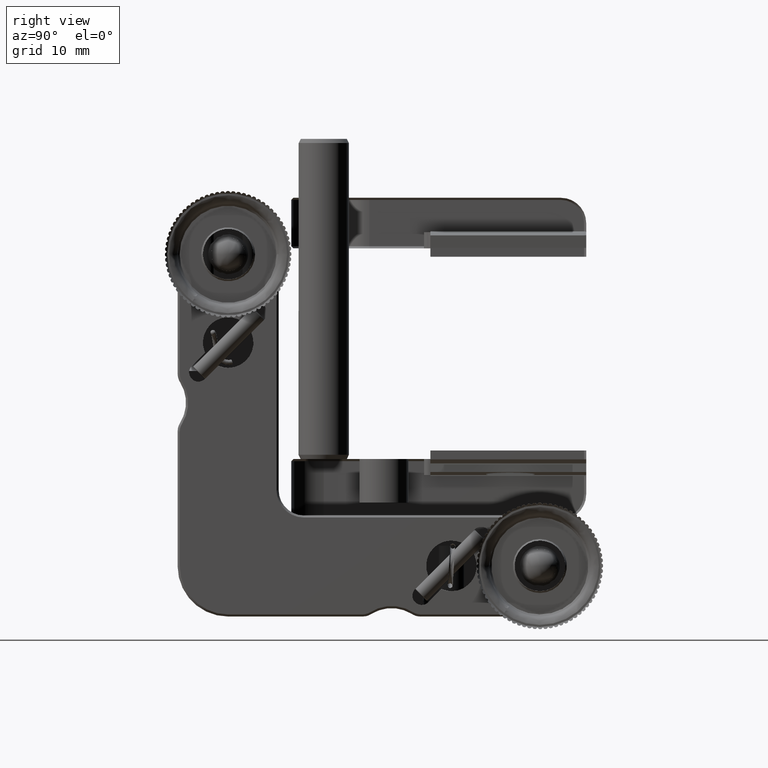
[diagram: clean part render]
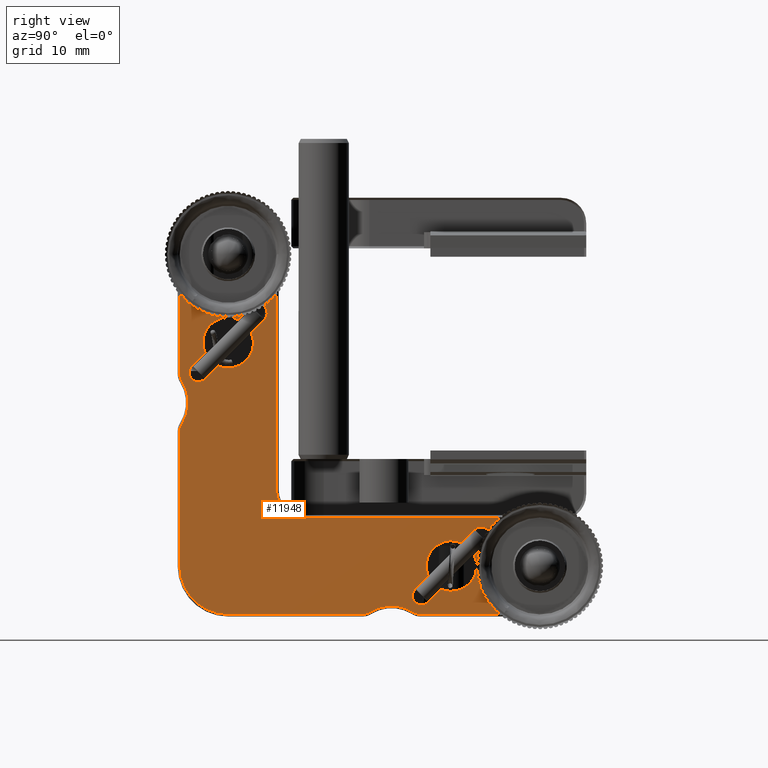
[diagram: same view with one face highlighted and labeled with its STEP entity id]
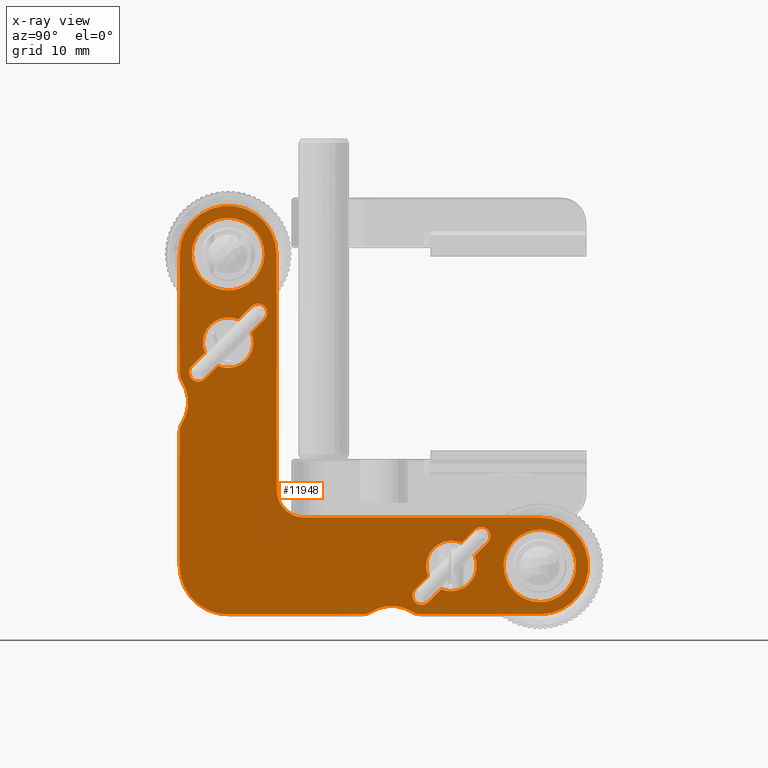
[diagram: x-ray of the same camera — body ghosted, the highlighted face saturated]
A machine part, right view. The second image highlights one B-rep face of the part: STEP entity #11948.
The next image is the same camera in x-ray: the body ghosted, the highlighted face saturated — about 0% of this face is hidden behind the body in this view.
In plain terms, the highlighted planar face has unit normal (1, -0, 0).
Its self-contained STEP definition (entity closure, byte-faithful):
#50 = CARTESIAN_POINT ( 'NONE',  ( -4.241743268239636322, -28.18608873492985012, 64.66912141911889478 ) ) ;
#172 = CARTESIAN_POINT ( 'NONE',  ( -4.241743268239636322, -7.687668858248105863, 29.30424202370614140 ) ) ;
#211 = CARTESIAN_POINT ( 'NONE',  ( -4.241743268239636322, -27.79664158331641133, 65.20904453012119006 ) ) ;
#230 = CARTESIAN_POINT ( 'NONE',  ( -4.241743268307176074, -36.91704519414748376, 47.36854112739627709 ) ) ;
#251 = CARTESIAN_POINT ( 'NONE',  ( -4.241743268239637210, 2.968090458738607662, 33.92906772998760090 ) ) ;
#365 = CARTESIAN_POINT ( 'NONE',  ( -4.241743268239637210, -27.75776076557543348, 69.73153419009217657 ) ) ;
#408 = CARTESIAN_POINT ( 'NONE',  ( -4.241743268239636322, 1.411490060111419975, 31.63352353895105296 ) ) ;
#420 = DIRECTION ( 'NONE',  ( 1.000000000000000000, -0.000000000000000000, -0.000000000000000000 ) ) ;
#421 = EDGE_CURVE ( 'NONE', #2104, #912, #19788, .T. ) ;
#522 = CARTESIAN_POINT ( 'NONE',  ( -4.241743268239636322, -28.66508601733288586, 64.20615514256219569 ) ) ;
#563 = CARTESIAN_POINT ( 'NONE',  ( -4.241743268239637210, 1.263791435125589890, 29.95355049306596840 ) ) ;
#615 = CARTESIAN_POINT ( 'NONE',  ( -4.241743268291429558, -22.43627596334387775, 39.50000000000000000 ) ) ;
#639 = VERTEX_POINT ( 'NONE', #20497 ) ;
#654 = CARTESIAN_POINT ( 'NONE',  ( -4.241743268239638098, 8.857568894083584610, 33.27118994602555802 ) ) ;
#690 = CARTESIAN_POINT ( 'NONE',  ( -4.241743268239636322, -28.83508814509134055, 70.93686597109810066 ) ) ;
#761 = DIRECTION ( 'NONE',  ( 0.000000000000000000, 0.000000000000000000, -1.000000000000000000 ) ) ;
#819 = CARTESIAN_POINT ( 'NONE',  ( -4.241743268239638098, 7.478970680304893648, 34.35475077789762821 ) ) ;
#830 = DIRECTION ( 'NONE',  ( -1.000000000000000000, -0.000000000000000000, -0.000000000000000000 ) ) ;
#839 = VERTEX_POINT ( 'NONE', #21770 ) ;
#856 = DIRECTION ( 'NONE',  ( 0.000000000000000000, 0.000000000000000000, -1.000000000000000000 ) ) ;
#858 = EDGE_CURVE ( 'NONE', #7142, #1146, #6519, .T. ) ;
#860 = VERTEX_POINT ( 'NONE', #31063 ) ;
#884 = CARTESIAN_POINT ( 'NONE',  ( -4.241743268239638098, 2.418324588451209678, 27.56425487554369980 ) ) ;
#887 = CARTESIAN_POINT ( 'NONE',  ( -4.241743268239636322, 1.708973258758272884, 32.41524664364856534 ) ) ;
#912 = VERTEX_POINT ( 'NONE', #12364 ) ;
#932 = CARTESIAN_POINT ( 'NONE',  ( -4.241743268239636322, -34.03190954125602730, 70.92906772999329235 ) ) ;
#1010 = EDGE_CURVE ( 'NONE', #6736, #14386, #28380, .T. ) ;
#1016 = CARTESIAN_POINT ( 'NONE',  ( -4.241743268239636322, -32.63203393963775056, 54.24860710509576478 ) ) ;
#1100 = CARTESIAN_POINT ( 'NONE',  ( -4.241743268239636322, -34.03746378159530650, 64.06313402889986719 ) ) ;
#1146 = VERTEX_POINT ( 'NONE', #10477 ) ;
#1165 = VERTEX_POINT ( 'NONE', #15350 ) ;
#1212 = CARTESIAN_POINT ( 'NONE',  ( -4.241743268239635434, 4.430088735178792980, 26.34781025370086383 ) ) ;
#1262 = CARTESIAN_POINT ( 'NONE',  ( -4.241743268239636322, -35.11479116111333809, 65.26846580990891766 ) ) ;
#1297 = LINE ( 'NONE', #8899, #28209 ) ;
#1417 = CARTESIAN_POINT ( 'NONE',  ( -4.241743268239636322, -34.95255393356799800, 65.02384870965046559 ) ) ;
#1445 = CARTESIAN_POINT ( 'NONE',  ( -4.241743268239636322, -37.18627596334385998, 49.00000000000001421 ) ) ;
#1574 = CARTESIAN_POINT ( 'NONE',  ( -4.241743268239636322, -35.11331557686494165, 69.73039862767036823 ) ) ;
#1625 = VERTEX_POINT ( 'NONE', #27331 ) ;
#1956 = AXIS2_PLACEMENT_3D ( 'NONE', #17949, #3355, #761 ) ;
#2062 = CARTESIAN_POINT ( 'NONE',  ( -4.241743268239636322, 9.549238352945716102, 32.11456086833818091 ) ) ;
#2104 = VERTEX_POINT ( 'NONE', #12332 ) ;
#2185 = FACE_BOUND ( 'NONE', #12035, .T. ) ;
#2194 = EDGE_CURVE ( 'NONE', #860, #29113, #19326, .T. ) ;
#2324 = DIRECTION ( 'NONE',  ( 1.000000000000000000, -0.000000000000000000, -0.000000000000000000 ) ) ;
#2369 = ORIENTED_EDGE ( 'NONE', *, *, #6613, .T. ) ;
#2373 = VECTOR ( 'NONE', #6983, 1000.000000000000000 ) ;
#2386 = B_SPLINE_CURVE_WITH_KNOTS ( 'NONE', 3,
 ( #12708, #17883, #17398, #20318, #13021, #15292, #2653, #3122, #27308, #19841, #15605, #22910, #7504, #690, #5074, #2809, #10414, #22598, #22437, #10584, #365, #7987, #10098, #25190, #2489, #30246, #30087, #15130, #27470, #2958, #7822, #12857, #5232, #10257, #12385, #22750, #22279, #27795, #5719, #211, #29924, #50, #7660, #522, #20153, #30402, #20481, #8145, #17552, #5549, #24869, #25350, #18039, #27957, #9934, #29771 ),
 .UNSPECIFIED., .F., .F.,
 ( 4, 1, 1, 1, 2, 2, 1, 2, 2, 2, 1, 2, 2, 1, 1, 2, 2, 2, 1, 1, 1, 2, 2, 1, 2, 2, 2, 1, 2, 2, 1, 1, 2, 2, 4 ),
 ( 0.000000000000000000, 0.06250000000000960343, 0.09375000000001409983, 0.1093750000000159595, 0.1171875000000168893, 0.1250000000000178191, 0.1562500000000183742, 0.1718750000000176248, 0.1875000000000168754, 0.2500000000000144884, 0.2812500000000119904, 0.2968750000000119349, 0.3125000000000118239, 0.3437500000000094924, 0.3593750000000083822, 0.3671875000000064393, 0.3750000000000045519, 0.5000000000000074385, 0.5625000000000105471, 0.5937500000000122125, 0.6093750000000127676, 0.6171875000000116573, 0.6250000000000105471, 0.6562500000000144329, 0.6718750000000164313, 0.6875000000000183187, 0.7500000000000204281, 0.7812500000000214273, 0.7968750000000207612, 0.8125000000000199840, 0.8437500000000179856, 0.8593750000000158762, 0.8671875000000145439, 0.8750000000000132117, 1.000000000000000000 ),
 .UNSPECIFIED. ) ;
#2489 = CARTESIAN_POINT ( 'NONE',  ( -4.241743268239636322, -27.46537467465373439, 69.15022359429254095 ) ) ;
#2512 = FACE_BOUND ( 'NONE', #5745, .T. ) ;
#2570 = CARTESIAN_POINT ( 'NONE',  ( -4.241743268272342604, -22.43627596334387775, 36.25000000000887468 ) ) ;
#2653 = CARTESIAN_POINT ( 'NONE',  ( -4.241743268239637210, -29.91711612671550569, 71.52285577431088370 ) ) ;
#2698 = CARTESIAN_POINT ( 'NONE',  ( -4.241743268239635434, 3.149988222370785351, 34.05936344847756203 ) ) ;
#2809 = CARTESIAN_POINT ( 'NONE',  ( -4.241743268239635434, -28.29087651513944834, 70.43574512445731273 ) ) ;
#2844 = DIRECTION ( 'NONE',  ( 0.000000000000000000, 0.000000000000000000, -1.000000000000000000 ) ) ;
#2852 = CARTESIAN_POINT ( 'NONE',  ( -4.241743268239637210, 5.016747480701998718, 34.80000000000002558 ) ) ;
#2958 = CARTESIAN_POINT ( 'NONE',  ( -4.241743268239637210, -27.17395577786049188, 66.82400577503672423 ) ) ;
#2998 = CARTESIAN_POINT ( 'NONE',  ( -4.241743268239635434, 1.263690337421411014, 30.77322475346705843 ) ) ;
#3092 = CARTESIAN_POINT ( 'NONE',  ( -4.241743268239635434, 9.123087485133215324, 32.91373581428693029 ) ) ;
#3104 = CARTESIAN_POINT ( 'NONE',  ( -4.241743268342171191, -40.93627596334386709, 49.90000000000001279 ) ) ;
#3122 = CARTESIAN_POINT ( 'NONE',  ( -4.241743268239636322, -29.88720657744178766, 71.51144152201705140 ) ) ;
#3155 = DIRECTION ( 'NONE',  ( 0.000000000000000000, 3.548298019043479384E-15, -1.000000000000000000 ) ) ;
#3159 = AXIS2_PLACEMENT_3D ( 'NONE', #3104, #830, #20623 ) ;
#3234 = EDGE_CURVE ( 'NONE', #29476, #12298, #7906, .T. ) ;
#3247 = LINE ( 'NONE', #15735, #10731 ) ;
#3317 = ORIENTED_EDGE ( 'NONE', *, *, #14965, .T. ) ;
#3322 = CARTESIAN_POINT ( 'NONE',  ( -4.241743268239637210, 4.044564200030785095, 26.47714422568913761 ) ) ;
#3355 = DIRECTION ( 'NONE',  ( -1.000000000000000000, -0.000000000000000000, -0.000000000000000000 ) ) ;
#3398 = DIRECTION ( 'NONE',  ( 0.000000000000000000, 0.000000000000000000, 1.000000000000000000 ) ) ;
#3407 = VECTOR ( 'NONE', #18376, 1000.000000000000114 ) ;
#3475 = CARTESIAN_POINT ( 'NONE',  ( -4.241743268239636322, -1.400742057411138219, 34.03553390593276617 ) ) ;
#3478 = CARTESIAN_POINT ( 'NONE',  ( -4.241743268239636322, 2.134656306664774128, 27.90436642208726781 ) ) ;
#3500 = VERTEX_POINT ( 'NONE', #30314 ) ;
#3525 = CARTESIAN_POINT ( 'NONE',  ( -4.241743268239637210, -32.89156552538248235, 63.45355748307729726 ) ) ;
#3573 = CARTESIAN_POINT ( 'NONE',  ( -4.241743268239636322, 8.334913982685696610, 27.20615514257659839 ) ) ;
#3661 = VERTEX_POINT ( 'NONE', #6247 ) ;
#3684 = CARTESIAN_POINT ( 'NONE',  ( -4.241743268239635434, -32.95543579996821393, 63.47714422568909498 ) ) ;
#3729 = CARTESIAN_POINT ( 'NONE',  ( -4.241743268239636322, 9.575165558671580257, 28.95093061409470181 ) ) ;
#3816 = DIRECTION ( 'NONE',  ( 0.000000000000000000, 1.982541115384549440E-15, 1.000000000000000000 ) ) ;
#3926 = CARTESIAN_POINT ( 'NONE',  ( -4.241743268301234160, -31.43627596334386354, 24.74999999993840660 ) ) ;
#3964 = DIRECTION ( 'NONE',  ( 0.000000000000000000, 0.000000000000000000, -1.000000000000000000 ) ) ;
#4163 = CARTESIAN_POINT ( 'NONE',  ( -4.241743268239636322, -35.40717725203451494, 65.84977640570799906 ) ) ;
#4285 = EDGE_CURVE ( 'NONE', #16887, #860, #28390, .T. ) ;
#4493 = CARTESIAN_POINT ( 'NONE',  ( -4.241743268239636322, 9.863757735890866130, 30.22677524653206760 ) ) ;
#4769 = ORIENTED_EDGE ( 'NONE', *, *, #31607, .T. ) ;
#4798 = CARTESIAN_POINT ( 'NONE',  ( -4.241743268239635434, -33.25277699884959759, 71.39868663332011067 ) ) ;
#4901 = DIRECTION ( 'NONE',  ( 1.000000000000000000, -0.000000000000000000, -0.000000000000000000 ) ) ;
#5061 = EDGE_CURVE ( 'NONE', #639, #7142, #20283, .T. ) ;
#5074 = CARTESIAN_POINT ( 'NONE',  ( -4.241743268239636322, -28.60539738244633767, 70.75018722839192264 ) ) ;
#5104 = CARTESIAN_POINT ( 'NONE',  ( -4.241743268239636322, -12.93627596334385643, 24.75000000000000711 ) ) ;
#5232 = CARTESIAN_POINT ( 'NONE',  ( -4.241743268239637210, -27.38981791317976544, 66.04474968789260458 ) ) ;
#5278 = CARTESIAN_POINT ( 'NONE',  ( -4.241743268239636322, 2.313536808269287537, 33.33087858090215150 ) ) ;
#5365 = CARTESIAN_POINT ( 'NONE',  ( -4.241743268239635434, 7.794122664313583471, 34.17703961352789577 ) ) ;
#5437 = CARTESIAN_POINT ( 'NONE',  ( -4.241743268239637210, 1.483054941969661922, 31.85919609526221308 ) ) ;
#5549 = CARTESIAN_POINT ( 'NONE',  ( -4.241743268239637210, -29.61977492785009858, 63.60131336667208757 ) ) ;
#5589 = CARTESIAN_POINT ( 'NONE',  ( -4.241743268239636322, 1.621223622608563675, 28.78300675302366329 ) ) ;
#5597 = CARTESIAN_POINT ( 'NONE',  ( -4.241743268265533828, -25.68627596331798202, 39.49999999999998579 ) ) ;
#5614 = VERTEX_POINT ( 'NONE', #31042 ) ;
#5673 = VERTEX_POINT ( 'NONE', #24825 ) ;
#5689 = CARTESIAN_POINT ( 'NONE',  ( -4.241743268239636322, 6.922985326729975242, 34.58064329370989753 ) ) ;
#5719 = CARTESIAN_POINT ( 'NONE',  ( -4.241743268239636322, -27.75923634981983668, 65.26960137233550086 ) ) ;
#5745 = EDGE_LOOP ( 'NONE', ( #2369, #12834 ) ) ;
#5838 = EDGE_CURVE ( 'NONE', #7691, #29476, #10538, .T. ) ;
#5874 = DIRECTION ( 'NONE',  ( 0.000000000000000000, -3.965082230769098879E-15, 1.000000000000000000 ) ) ;
#5883 = AXIS2_PLACEMENT_3D ( 'NONE', #7392, #12603, #17301 ) ;
#5894 = CARTESIAN_POINT ( 'NONE',  ( -4.241743268239636322, -8.471809869276574645, 26.96446609406725514 ) ) ;
#5914 = CARTESIAN_POINT ( 'NONE',  ( -4.241743268239636322, 3.333325409003011330, 26.82296038646932601 ) ) ;
#6068 = CIRCLE ( 'NONE', #28378, 1.750000000015461410 ) ;
#6247 = CARTESIAN_POINT ( 'NONE',  ( -4.241743268239636322, -34.19399240997142186, 52.68664863476209348 ) ) ;
#6279 = EDGE_CURVE ( 'NONE', #16823, #5673, #6980, .T. ) ;
#6495 = DIRECTION ( 'NONE',  ( 1.000000000000000000, -0.000000000000000000, -0.000000000000000000 ) ) ;
#6519 = LINE ( 'NONE', #19169, #22233 ) ;
#6531 = ORIENTED_EDGE ( 'NONE', *, *, #23325, .T. ) ;
#6583 = CARTESIAN_POINT ( 'NONE',  ( -4.241743268239636322, -33.66667459099716098, 63.82296038646862257 ) ) ;
#6613 = EDGE_CURVE ( 'NONE', #1165, #9473, #2386, .T. ) ;
#6736 = VERTEX_POINT ( 'NONE', #30662 ) ;
#6907 = CARTESIAN_POINT ( 'NONE',  ( -4.241743268239637210, -33.85001177763077607, 71.05936344847735597 ) ) ;
#6914 = CARTESIAN_POINT ( 'NONE',  ( -4.241743268239637210, 6.638303009638733876, 26.30063676847720089 ) ) ;
#6980 = B_SPLINE_CURVE_WITH_KNOTS ( 'NONE', 3,
 ( #15643, #30607, #10938, #1212, #20843, #28158, #3322, #28317, #18248, #13533, #13223, #5914, #23111, #23427, #20682, #884, #30770, #3478, #13375, #23270, #20197, #12898, #10776, #5589, #25230, #10301, #22639, #563, #2998, #10456, #408, #5437, #29813, #8030, #7550, #15488, #887, #27512, #29970, #17438, #27353, #5278, #27679, #15176, #251, #20358, #2698, #30288, #15647, #17920, #25559, #20039, #27833, #12588, #2852, #25391 ),
 .UNSPECIFIED., .F., .F.,
 ( 4, 1, 1, 1, 2, 2, 1, 2, 2, 2, 1, 2, 2, 1, 1, 2, 2, 2, 1, 1, 1, 2, 2, 1, 2, 2, 2, 1, 2, 2, 1, 1, 2, 2, 4 ),
 ( 0.000000000000000000, 0.06249999999999213129, 0.09374999999998812061, 0.1093749999999862194, 0.1171874999999852757, 0.1249999999999843181, 0.1562499999999802380, 0.1718749999999781564, 0.1874999999999761024, 0.2499999999999678590, 0.2812499999999637512, 0.2968749999999620304, 0.3124999999999602540, 0.3437499999999567013, 0.3593749999999552580, 0.3671874999999545364, 0.3749999999999538147, 0.4999999999999487077, 0.5624999999999464873, 0.5937499999999462652, 0.6093749999999460432, 0.6171874999999467093, 0.6249999999999473754, 0.6562499999999514833, 0.6718749999999541478, 0.6874999999999568123, 0.7499999999999652500, 0.7812499999999689138, 0.7968749999999706901, 0.8124999999999725775, 0.8437499999999761302, 0.8593749999999779066, 0.8671874999999789058, 0.8749999999999797939, 1.000000000000000000 ),
 .UNSPECIFIED. ) ;
#6983 = DIRECTION ( 'NONE',  ( 0.000000000000000000, 0.7071067811865443531, 0.7071067811865506814 ) ) ;
#7142 = VERTEX_POINT ( 'NONE', #14855 ) ;
#7218 = CARTESIAN_POINT ( 'NONE',  ( -4.241743268239638098, -33.08649955763755202, 71.47090128868894965 ) ) ;
#7392 = CARTESIAN_POINT ( 'NONE',  ( -4.241743268305998349, 5.563724036656139127, 30.50000000000001776 ) ) ;
#7504 = CARTESIAN_POINT ( 'NONE',  ( -4.241743268239636322, -29.14532049346187748, 71.13963438002571138 ) ) ;
#7550 = CARTESIAN_POINT ( 'NONE',  ( -4.241743268239636322, 1.552282514640609179, 32.04906938590500687 ) ) ;
#7631 = CARTESIAN_POINT ( 'NONE',  ( -4.241743268239637210, 8.394602617549116630, 33.75018722839747198 ) ) ;
#7650 = EDGE_CURVE ( 'NONE', #3500, #3661, #18212, .T. ) ;
#7660 = CARTESIAN_POINT ( 'NONE',  ( -4.241743268239637210, -28.50053083889768857, 64.35460055178735672 ) ) ;
#7675 = CIRCLE ( 'NONE', #23731, 3.249999999979991117 ) ;
#7691 = VERTEX_POINT ( 'NONE', #3926 ) ;
#7792 = CARTESIAN_POINT ( 'NONE',  ( -4.241743268239636322, 5.563724036656139127, 34.80000000000001847 ) ) ;
#7822 = CARTESIAN_POINT ( 'NONE',  ( -4.241743268239636322, -27.28404198679799464, 66.36647646104405851 ) ) ;
#7902 = CARTESIAN_POINT ( 'NONE',  ( -4.241743268228714392, -15.50037757848162379, 24.75000000004490985 ) ) ;
#7906 = CIRCLE ( 'NONE', #26060, 1.749999999922969396 ) ;
#7987 = CARTESIAN_POINT ( 'NONE',  ( -4.241743268239636322, -27.64830876638820811, 69.54415904193919573 ) ) ;
#7998 = CARTESIAN_POINT ( 'NONE',  ( -4.241743268239636322, -4.936275963343856432, 30.50000000000001066 ) ) ;
#8030 = CARTESIAN_POINT ( 'NONE',  ( -4.241743268239636322, 1.540860100811846101, 32.01913921377825289 ) ) ;
#8145 = CARTESIAN_POINT ( 'NONE',  ( -4.241743268239635434, -29.20474177325842291, 63.82148480222812736 ) ) ;
#8171 = EDGE_CURVE ( 'NONE', #5614, #21555, #10834, .T. ) ;
#8276 = CARTESIAN_POINT ( 'NONE',  ( -4.241743268239637210, 7.082883873282955989, 34.52285577431089791 ) ) ;
#8393 = CARTESIAN_POINT ( 'NONE',  ( -4.241743268239636322, -33.54160164930696197, 63.74991179227873772 ) ) ;
#8597 = CARTESIAN_POINT ( 'NONE',  ( -4.241743268239636322, 9.826044222137969797, 29.82400577504159855 ) ) ;
#8643 = CIRCLE ( 'NONE', #30440, 3.000000000000002665 ) ;
#8709 = CARTESIAN_POINT ( 'NONE',  ( -4.241743268239637210, -35.73620856487622888, 66.95355049304212969 ) ) ;
#8740 = CARTESIAN_POINT ( 'NONE',  ( -4.241743268276100487, -36.91704519411906205, 52.43145887257534099 ) ) ;
#8752 = CARTESIAN_POINT ( 'NONE',  ( -4.241743268239636322, 7.280717283630615988, 26.55749958595108495 ) ) ;
#8864 = CARTESIAN_POINT ( 'NONE',  ( -4.241743268239636322, -35.45913989918796005, 69.01913921378111638 ) ) ;
#8899 = CARTESIAN_POINT ( 'NONE',  ( -4.241743268239636322, -30.24051798705000493, 59.75139289490426364 ) ) ;
#9075 = ORIENTED_EDGE ( 'NONE', *, *, #31527, .T. ) ;
#9143 = DIRECTION ( 'NONE',  ( 0.000000000000000000, -0.7071067811865439090, -0.7071067811865512365 ) ) ;
#9192 = VECTOR ( 'NONE', #12417, 1000.000000000000000 ) ;
#9322 = ORIENTED_EDGE ( 'NONE', *, *, #5838, .T. ) ;
#9417 = CARTESIAN_POINT ( 'NONE',  ( -4.241743268239636322, -34.18766885824814494, 55.80424202370616626 ) ) ;
#9426 = EDGE_CURVE ( 'NONE', #25974, #12697, #11050, .T. ) ;
#9443 = CARTESIAN_POINT ( 'NONE',  ( -4.241743268271425116, -31.43627596334388485, 67.50000000000000000 ) ) ;
#9473 = VERTEX_POINT ( 'NONE', #15573 ) ;
#9512 = CARTESIAN_POINT ( 'NONE',  ( -4.241743268239636322, 9.508406421436623290, 28.78224128804106030 ) ) ;
#9565 = DIRECTION ( 'NONE',  ( -1.000000000000000000, -0.000000000000000000, -0.000000000000000000 ) ) ;
#9662 = CARTESIAN_POINT ( 'NONE',  ( -4.241743268239636322, -32.51085493634405310, 71.69936323152282398 ) ) ;
#9699 = VECTOR ( 'NONE', #15571, 1000.000000000000000 ) ;
#9934 = CARTESIAN_POINT ( 'NONE',  ( -4.241743268239635434, -30.88929940740460367, 63.20000000000000284 ) ) ;
#10098 = CARTESIAN_POINT ( 'NONE',  ( -4.241743268239638098, -27.53758933002049147, 69.31650103550256858 ) ) ;
#10257 = CARTESIAN_POINT ( 'NONE',  ( -4.241743268239636322, -27.41341202749938333, 65.98086078622088735 ) ) ;
#10301 = CARTESIAN_POINT ( 'NONE',  ( -4.241743268239636322, 1.578209720366563928, 28.88543913166148513 ) ) ;
#10306 = EDGE_CURVE ( 'NONE', #19219, #17364, #19356, .T. ) ;
#10346 = DIRECTION ( 'NONE',  ( -1.000000000000000000, -0.000000000000000000, -0.000000000000000000 ) ) ;
#10386 = CARTESIAN_POINT ( 'NONE',  ( -4.241743268239635434, 8.709123484862884013, 33.43574512445453450 ) ) ;
#10414 = CARTESIAN_POINT ( 'NONE',  ( -4.241743268239636322, -28.14243110592045483, 70.27118994603034707 ) ) ;
#10445 = ORIENTED_EDGE ( 'NONE', *, *, #5061, .T. ) ;
#10456 = CARTESIAN_POINT ( 'NONE',  ( -4.241743268239636322, 1.301403851174309123, 31.17599422495683470 ) ) ;
#10477 = CARTESIAN_POINT ( 'NONE',  ( -4.241743268239636322, -2.184883068439606557, 31.69575797629387637 ) ) ;
#10538 = LINE ( 'NONE', #26239, #22859 ) ;
#10551 = CARTESIAN_POINT ( 'NONE',  ( -4.241743268239634546, 9.080002006882216037, 32.97615129034756620 ) ) ;
#10553 = CARTESIAN_POINT ( 'NONE',  ( -4.241743268301234160, -37.18627596340545693, 30.50000000000000355 ) ) ;
#10584 = CARTESIAN_POINT ( 'NONE',  ( -4.241743268239635434, -27.87691251486780075, 69.91373581428807427 ) ) ;
#10710 = CARTESIAN_POINT ( 'NONE',  ( -4.241743268239636322, 7.669049722625763010, 34.25008820771572715 ) ) ;
#10731 = VECTOR ( 'NONE', #25645, 1000.000000000000000 ) ;
#10776 = CARTESIAN_POINT ( 'NONE',  ( -4.241743268239637210, 1.665037403334501898, 28.68349896449443293 ) ) ;
#10824 = CARTESIAN_POINT ( 'NONE',  ( -4.241743268239636322, -34.58167541154837465, 64.56425487554326992 ) ) ;
#10834 = LINE ( 'NONE', #31424, #29112 ) ;
#10874 = CARTESIAN_POINT ( 'NONE',  ( -4.241743268239635434, 9.534625325345354341, 32.15022359429365650 ) ) ;
#10901 = AXIS2_PLACEMENT_3D ( 'NONE', #5894, #22927, #10918 ) ;
#10918 = DIRECTION ( 'NONE',  ( 0.000000000000000000, -3.154042683594193641E-15, -1.000000000000000000 ) ) ;
#10938 = CARTESIAN_POINT ( 'NONE',  ( -4.241743268239636322, 4.887580794997603562, 26.23773878817896232 ) ) ;
#10942 = CARTESIAN_POINT ( 'NONE',  ( -4.241743268239636322, 5.563724036656139127, 26.20000000000001350 ) ) ;
#10954 = ORIENTED_EDGE ( 'NONE', *, *, #18517, .T. ) ;
#10988 = CARTESIAN_POINT ( 'NONE',  ( -4.241743268239637210, -34.26715454424135743, 64.24981277160708260 ) ) ;
#11030 = CARTESIAN_POINT ( 'NONE',  ( -4.241743268239635434, 7.178295555155533414, 26.51448990149120277 ) ) ;
#11050 = CIRCLE ( 'NONE', #29731, 3.000000000000002665 ) ;
#11149 = CARTESIAN_POINT ( 'NONE',  ( -4.241743268239635434, -35.42179027963332771, 65.88543913166057564 ) ) ;
#11166 = CARTESIAN_POINT ( 'NONE',  ( -4.241743268239636322, -27.12292459810590728, 59.75771644662752635 ) ) ;
#11462 = CARTESIAN_POINT ( 'NONE',  ( -4.241743268239636322, -34.68646319173858927, 70.33087858089383815 ) ) ;
#11558 = DIRECTION ( 'NONE',  ( 0.000000000000000000, -0.7071067811865427988, -0.7071067811865522357 ) ) ;
#11787 = CARTESIAN_POINT ( 'NONE',  ( -4.241743268239635434, 9.586587972500433708, 28.98086078622156947 ) ) ;
#11795 = CIRCLE ( 'NONE', #1956, 4.749999999976744824 ) ;
#11829 = ORIENTED_EDGE ( 'NONE', *, *, #3234, .T. ) ;
#11948 = ADVANCED_FACE ( 'NONE', ( #22457, #24725, #2512, #27003, #2185 ), #29792, .T. ) ;
#11951 = VERTEX_POINT ( 'NONE', #230 ) ;
#11952 = CARTESIAN_POINT ( 'NONE',  ( -4.241743268239637210, 8.813911265048977484, 27.66912141910244927 ) ) ;
#12035 = EDGE_LOOP ( 'NONE', ( #4769, #10445, #14476, #29794, #13211, #10954, #31000, #16909 ) ) ;
#12082 = CARTESIAN_POINT ( 'NONE',  ( -4.241743268239636322, -12.93627596334385643, 49.00000000000001421 ) ) ;
#12211 = AXIS2_PLACEMENT_3D ( 'NONE', #14513, #19543, #24730 ) ;
#12298 = VERTEX_POINT ( 'NONE', #18544 ) ;
#12332 = CARTESIAN_POINT ( 'NONE',  ( -4.241743268269353884, -9.504817090728350237, 25.01923076923866773 ) ) ;
#12364 = CARTESIAN_POINT ( 'NONE',  ( -4.241743268253939547, -8.572174348206102579, 24.74999999998570388 ) ) ;
#12385 = CARTESIAN_POINT ( 'NONE',  ( -4.241743268239637210, -27.42483444132724557, 65.95093061409708923 ) ) ;
#12407 = DIRECTION ( 'NONE',  ( 0.000000000000000000, 0.000000000000000000, -1.000000000000000000 ) ) ;
#12417 = DIRECTION ( 'NONE',  ( 0.000000000000000000, 1.000000000000000000, 0.000000000000000000 ) ) ;
#12588 = CARTESIAN_POINT ( 'NONE',  ( -4.241743268239635434, 4.489145063663311674, 34.69936323152282398 ) ) ;
#12603 = DIRECTION ( 'NONE',  ( 1.000000000000000000, -0.000000000000000000, -0.000000000000000000 ) ) ;
#12697 = VERTEX_POINT ( 'NONE', #27056 ) ;
#12708 = CARTESIAN_POINT ( 'NONE',  ( -4.241743268239636322, -31.43627596334388485, 71.79999999999999716 ) ) ;
#12761 = CARTESIAN_POINT ( 'NONE',  ( -4.241743268268243661, -8.572174348206102579, 26.50000000000000711 ) ) ;
#12768 = ORIENTED_EDGE ( 'NONE', *, *, #20851, .T. ) ;
#12809 = DIRECTION ( 'NONE',  ( 1.000000000000000000, -0.000000000000000000, -0.000000000000000000 ) ) ;
#12834 = ORIENTED_EDGE ( 'NONE', *, *, #32134, .T. ) ;
#12857 = CARTESIAN_POINT ( 'NONE',  ( -4.241743268239636322, -27.35560686865673574, 66.14080390473495186 ) ) ;
#12898 = CARTESIAN_POINT ( 'NONE',  ( -4.241743268239636322, 1.775756839702826051, 28.45584095805680747 ) ) ;
#12934 = B_SPLINE_CURVE_WITH_KNOTS ( 'NONE', 3,
 ( #28692, #13426, #28526, #21212, #15851, #3525, #3684, #25923, #23319, #13750, #8393, #6583, #20893, #1100, #10988, #10824, #30819, #13585, #1417, #16335, #1262, #16007, #23636, #30972, #4163, #11149, #21057, #8709, #16171, #26084, #18296, #31135, #13900, #8864, #18772, #26243, #23797, #28208, #1574, #25769, #18932, #11462, #31302, #14063, #932, #24423, #6907, #14535, #27033, #4798, #29657, #7218, #31777, #9662, #31459, #17290 ),
 .UNSPECIFIED., .F., .F.,
 ( 4, 1, 1, 1, 2, 2, 1, 2, 2, 2, 1, 2, 2, 1, 1, 2, 2, 2, 1, 1, 1, 2, 2, 1, 2, 2, 2, 1, 2, 2, 1, 1, 2, 2, 4 ),
 ( 0.000000000000000000, 0.06249999999999687750, 0.09374999999999640565, 0.1093749999999966277, 0.1171874999999959754, 0.1249999999999953371, 0.1562499999999969191, 0.1718749999999976963, 0.1874999999999984457, 0.2500000000000075495, 0.2812500000000116018, 0.2968750000000129341, 0.3125000000000142664, 0.3437500000000169309, 0.3593750000000182632, 0.3671875000000192624, 0.3750000000000202061, 0.5000000000000217604, 0.5625000000000225375, 0.5937500000000213163, 0.6093750000000209832, 0.6171875000000219824, 0.6250000000000230926, 0.6562500000000234257, 0.6718750000000236478, 0.6875000000000238698, 0.7500000000000220934, 0.7812500000000202061, 0.7968750000000183187, 0.8125000000000164313, 0.8437500000000114353, 0.8593750000000103251, 0.8671875000000098810, 0.8750000000000093259, 1.000000000000000000 ),
 .UNSPECIFIED. ) ;
#12984 = DIRECTION ( 'NONE',  ( 0.000000000000000000, 0.000000000000000000, -1.000000000000000000 ) ) ;
#12988 = ORIENTED_EDGE ( 'NONE', *, *, #421, .T. ) ;
#12989 = CARTESIAN_POINT ( 'NONE',  ( -4.241743268239637210, 6.697359338141413154, 34.65218974629917170 ) ) ;
#13021 = CARTESIAN_POINT ( 'NONE',  ( -4.241743268239636322, -30.07701467326509004, 71.58064329370988332 ) ) ;
#13024 = CARTESIAN_POINT ( 'NONE',  ( -4.241743268239636322, -28.68488306843961766, 58.19575797629385505 ) ) ;
#13145 = EDGE_CURVE ( 'NONE', #912, #19219, #24734, .T. ) ;
#13211 = ORIENTED_EDGE ( 'NONE', *, *, #8171, .T. ) ;
#13223 = CARTESIAN_POINT ( 'NONE',  ( -4.241743268239636322, 3.458398350693293377, 26.74991179227987814 ) ) ;
#13292 = DIRECTION ( 'NONE',  ( 1.000000000000000000, -0.000000000000000000, -0.000000000000000000 ) ) ;
#13311 = CARTESIAN_POINT ( 'NONE',  ( -4.241743268239635434, 8.499469161112957138, 27.35460055179557415 ) ) ;
#13375 = CARTESIAN_POINT ( 'NONE',  ( -4.241743268239635434, 2.047446066431648504, 28.02384870965085284 ) ) ;
#13426 = CARTESIAN_POINT ( 'NONE',  ( -4.241743268239636322, -31.70958586920769662, 63.20000000000003126 ) ) ;
#13533 = CARTESIAN_POINT ( 'NONE',  ( -4.241743268239637210, 3.648477393016011927, 26.64524922209678337 ) ) ;
#13585 = CARTESIAN_POINT ( 'NONE',  ( -4.241743268239636322, -34.86534369333465833, 64.90436642208665319 ) ) ;
#13612 = DIRECTION ( 'NONE',  ( 0.000000000000000000, 0.000000000000000000, -1.000000000000000000 ) ) ;
#13701 = VECTOR ( 'NONE', #23334, 1000.000000000000000 ) ;
#13750 = CARTESIAN_POINT ( 'NONE',  ( -4.241743268239636322, -33.35152260698428961, 63.64524922209533031 ) ) ;
#13764 = CIRCLE ( 'NONE', #12211, 2.999999999999999112 ) ;
#13900 = CARTESIAN_POINT ( 'NONE',  ( -4.241743268239637210, -35.48273401350721201, 68.95525031211120393 ) ) ;
#13969 = CARTESIAN_POINT ( 'NONE',  ( -4.241743268239636322, -25.68627596334387775, 49.00000000000001421 ) ) ;
#14063 = CARTESIAN_POINT ( 'NONE',  ( -4.241743268239636322, -34.20746590937180542, 70.79384485742673405 ) ) ;
#14238 = EDGE_LOOP ( 'NONE', ( #21972, #22971, #30458, #22312, #9075, #31349, #16949, #31913 ) ) ;
#14382 = CARTESIAN_POINT ( 'NONE',  ( -4.241743268239636322, 9.000590007764543543, 27.89881218175684552 ) ) ;
#14386 = VERTEX_POINT ( 'NONE', #13024 ) ;
#14476 = ORIENTED_EDGE ( 'NONE', *, *, #858, .T. ) ;
#14513 = CARTESIAN_POINT ( 'NONE',  ( -4.241743268239636322, -4.936275963343856432, 30.50000000000001066 ) ) ;
#14535 = CARTESIAN_POINT ( 'NONE',  ( -4.241743268239637210, -33.66781015343845240, 71.17851519776594671 ) ) ;
#14855 = CARTESIAN_POINT ( 'NONE',  ( -4.241743268239636322, -0.6229245981059319259, 33.25771644662757609 ) ) ;
#14965 = EDGE_CURVE ( 'NONE', #17364, #24051, #27918, .T. ) ;
#15030 = EDGE_CURVE ( 'NONE', #20504, #27371, #3247, .T. ) ;
#15050 = EDGE_CURVE ( 'NONE', #3661, #839, #28893, .T. ) ;
#15056 = ORIENTED_EDGE ( 'NONE', *, *, #17828, .T. ) ;
#15130 = CARTESIAN_POINT ( 'NONE',  ( -4.241743268239636322, -27.13634336181512552, 68.04644950694154204 ) ) ;
#15176 = CARTESIAN_POINT ( 'NONE',  ( -4.241743268239637210, 2.792534090621350717, 33.79384485741946520 ) ) ;
#15264 = CARTESIAN_POINT ( 'NONE',  ( -4.241743268239635434, 5.837033942530197805, 34.80000000000001847 ) ) ;
#15292 = CARTESIAN_POINT ( 'NONE',  ( -4.241743268239636322, -29.98098640129757442, 71.54644251692270984 ) ) ;
#15350 = CARTESIAN_POINT ( 'NONE',  ( -4.241743268239636322, -31.43627596334388485, 71.79999999999999716 ) ) ;
#15394 = EDGE_CURVE ( 'NONE', #24051, #26523, #7675, .T. ) ;
#15488 = CARTESIAN_POINT ( 'NONE',  ( -4.241743268239636322, 1.619041651876003129, 32.21775871196035013 ) ) ;
#15571 = DIRECTION ( 'NONE',  ( -0.000000000000000000, -1.000000000000000000, -0.000000000000000000 ) ) ;
#15573 = CARTESIAN_POINT ( 'NONE',  ( -4.241743268239636322, -31.43627596334388485, 63.20000000000000284 ) ) ;
#15596 = EDGE_LOOP ( 'NONE', ( #28269, #17459, #25880, #9322, #11829, #6531, #12988, #28339, #18101, #3317, #27542, #16536, #19916, #26273, #31638, #12768 ) ) ;
#15605 = CARTESIAN_POINT ( 'NONE',  ( -4.241743268239635434, -29.33095027735853932, 71.25008820770763407 ) ) ;
#15643 = CARTESIAN_POINT ( 'NONE',  ( -4.241743268239636322, 5.563724036656139127, 26.20000000000001350 ) ) ;
#15647 = CARTESIAN_POINT ( 'NONE',  ( -4.241743268239638098, 3.519564994707373273, 34.28796719695053241 ) ) ;
#15735 = CARTESIAN_POINT ( 'NONE',  ( -4.241743268239636322, -37.18627596334385998, 49.00000000000001421 ) ) ;
#15737 = DIRECTION ( 'NONE',  ( -1.000000000000000000, -0.000000000000000000, -0.000000000000000000 ) ) ;
#15851 = CARTESIAN_POINT ( 'NONE',  ( -4.241743268239636322, -32.79553725340988279, 63.41935670629009536 ) ) ;
#15891 = CARTESIAN_POINT ( 'NONE',  ( -4.241743268239637210, 9.763019783686608832, 31.57474937556246175 ) ) ;
#16007 = CARTESIAN_POINT ( 'NONE',  ( -4.241743268239636322, -35.22424316030130598, 65.45584095806269431 ) ) ;
#16171 = CARTESIAN_POINT ( 'NONE',  ( -4.241743268239636322, -35.73630966257772457, 67.77322475347898489 ) ) ;
#16217 = CARTESIAN_POINT ( 'NONE',  ( -4.241743268239636322, 6.110700592600045056, 26.20000000000000995 ) ) ;
#16335 = CARTESIAN_POINT ( 'NONE',  ( -4.241743268239635434, -34.99563941181946092, 65.08626418571137151 ) ) ;
#16407 = DIRECTION ( 'NONE',  ( 0.000000000000000000, -0.7071067811865506814, -0.7071067811865443531 ) ) ;
#16445 = CIRCLE ( 'NONE', #31523, 1.099999999999996758 ) ;
#16536 = ORIENTED_EDGE ( 'NONE', *, *, #25025, .T. ) ;
#16781 = ORIENTED_EDGE ( 'NONE', *, *, #6279, .T. ) ;
#16823 = VERTEX_POINT ( 'NONE', #10942 ) ;
#16845 = DIRECTION ( 'NONE',  ( -1.000000000000000000, -0.000000000000000000, -0.000000000000000000 ) ) ;
#16887 = VERTEX_POINT ( 'NONE', #30333 ) ;
#16909 = ORIENTED_EDGE ( 'NONE', *, *, #27046, .T. ) ;
#16926 = CARTESIAN_POINT ( 'NONE',  ( -4.241743268255908639, -37.18627596336013141, 46.43589838486226284 ) ) ;
#16925 = CIRCLE ( 'NONE', #21092, 5.749999999977717380 ) ;
#16949 = ORIENTED_EDGE ( 'NONE', *, *, #29082, .T. ) ;
#17026 = DIRECTION ( 'NONE',  ( 0.000000000000000000, -3.154042683594203897E-15, -1.000000000000000000 ) ) ;
#17122 = CIRCLE ( 'NONE', #25395, 5.750000000034560799 ) ;
#17189 = CARTESIAN_POINT ( 'NONE',  ( -4.241743268239636322, -27.90074205741110802, 60.53553390593273065 ) ) ;
#17290 = CARTESIAN_POINT ( 'NONE',  ( -4.241743268239636322, -31.43627596334388485, 71.79999999999999716 ) ) ;
#17301 = DIRECTION ( 'NONE',  ( 0.000000000000000000, 9.050731178955034644E-16, 1.000000000000000000 ) ) ;
#17364 = VERTEX_POINT ( 'NONE', #17892 ) ;
#17384 = CARTESIAN_POINT ( 'NONE',  ( -4.241743268362831110, -31.43627596334385643, 30.50000000000000711 ) ) ;
#17398 = CARTESIAN_POINT ( 'NONE',  ( -4.241743268239637210, -30.76013272166346013, 71.76226121182105544 ) ) ;
#17438 = CARTESIAN_POINT ( 'NONE',  ( -4.241743268239635434, 1.924089656632856471, 32.79095546988459375 ) ) ;
#17459 = ORIENTED_EDGE ( 'NONE', *, *, #15030, .T. ) ;
#17524 = CARTESIAN_POINT ( 'NONE',  ( -4.241743268239636322, 9.351691233608320886, 32.54415904194329556 ) ) ;
#17552 = CARTESIAN_POINT ( 'NONE',  ( -4.241743268239637210, -29.39211692141639176, 63.71203280303831917 ) ) ;
#17689 = CARTESIAN_POINT ( 'NONE',  ( -4.241743268239636322, 7.019013598699465284, 34.54644251692274537 ) ) ;
#17828 = EDGE_CURVE ( 'NONE', #5673, #16823, #23462, .T. ) ;
#17853 = CARTESIAN_POINT ( 'NONE',  ( -4.241743268239635434, 8.992791766650000795, 33.09563357791027016 ) ) ;
#17868 = EDGE_LOOP ( 'NONE', ( #15056, #16781 ) ) ;
#17883 = CARTESIAN_POINT ( 'NONE',  ( -4.241743268239636322, -31.16296605746335047, 71.79999999999999716 ) ) ;
#17892 = CARTESIAN_POINT ( 'NONE',  ( -4.241743268272808898, 5.563724036656135574, 36.25000000003317524 ) ) ;
#17920 = CARTESIAN_POINT ( 'NONE',  ( -4.241743268239637210, 3.747223001146392729, 34.39868663331955645 ) ) ;
#17949 = CARTESIAN_POINT ( 'NONE',  ( -4.241743268276495726, -12.03627596334386141, 21.00000000000001066 ) ) ;
#18039 = CARTESIAN_POINT ( 'NONE',  ( -4.241743268239635434, -29.82170444484419747, 63.51448990149118146 ) ) ;
#18101 = ORIENTED_EDGE ( 'NONE', *, *, #10306, .T. ) ;
#18165 = CIRCLE ( 'NONE', #3159, 4.749999999946449947 ) ;
#18177 = CARTESIAN_POINT ( 'NONE',  ( -4.241743268239636322, 8.164911854902120680, 33.93686597110562531 ) ) ;
#18212 = LINE ( 'NONE', #1016, #31247 ) ;
#18248 = CARTESIAN_POINT ( 'NONE',  ( -4.241743268239636322, 3.845965324700617138, 26.55531761521680778 ) ) ;
#18296 = CARTESIAN_POINT ( 'NONE',  ( -4.241743268239636322, -35.58850993988741607, 68.63352353896669911 ) ) ;
#18340 = CARTESIAN_POINT ( 'NONE',  ( -4.241743268239635434, 7.977459850944184083, 26.94063655152406866 ) ) ;
#18376 = DIRECTION ( 'NONE',  ( 0.000000000000000000, 0.7071067811865536790, 0.7071067811865412445 ) ) ;
#18405 = DIRECTION ( 'NONE',  ( -1.000000000000000000, -0.000000000000000000, -0.000000000000000000 ) ) ;
#18493 = CARTESIAN_POINT ( 'NONE',  ( -4.241743268239637210, 8.159357614569563211, 27.07093227000932600 ) ) ;
#18517 = EDGE_CURVE ( 'NONE', #21555, #26152, #24893, .T. ) ;
#18544 = CARTESIAN_POINT ( 'NONE',  ( -4.241743268197702754, -14.56773483597603303, 25.01923076925323386 ) ) ;
#18673 = CARTESIAN_POINT ( 'NONE',  ( -4.241743268272181844, -35.43627596334386709, 46.43589838486226284 ) ) ;
#18772 = CARTESIAN_POINT ( 'NONE',  ( -4.241743268239636322, -35.44771748536138745, 69.04906938590126231 ) ) ;
#18793 = DIRECTION ( 'NONE',  ( 0.000000000000000000, 0.000000000000000000, 1.000000000000000000 ) ) ;
#18802 = AXIS2_PLACEMENT_3D ( 'NONE', #22548, #12809, #3398 ) ;
#18932 = CARTESIAN_POINT ( 'NONE',  ( -4.241743268239636322, -34.87314193444203880, 70.10118781825150336 ) ) ;
#19155 = LINE ( 'NONE', #28926, #2373 ) ;
#19169 = CARTESIAN_POINT ( 'NONE',  ( -4.241743268239636322, -0.6229245981059314818, 33.25771644662757609 ) ) ;
#19219 = VERTEX_POINT ( 'NONE', #31664 ) ;
#19243 = AXIS2_PLACEMENT_3D ( 'NONE', #3475, #18405, #3155 ) ;
#19326 = CIRCLE ( 'NONE', #18802, 1.749999999979989784 ) ;
#19356 = CIRCLE ( 'NONE', #5883, 5.750000000034557246 ) ;
#19419 = CARTESIAN_POINT ( 'NONE',  ( -4.241743268239635434, 9.203358416679289888, 28.20904453011566559 ) ) ;
#19543 = DIRECTION ( 'NONE',  ( -1.000000000000000000, -0.000000000000000000, -0.000000000000000000 ) ) ;
#19788 = CIRCLE ( 'NONE', #31147, 1.750000000015461410 ) ;
#19841 = CARTESIAN_POINT ( 'NONE',  ( -4.241743268239637210, -29.52102931967512944, 71.35475077788731824 ) ) ;
#19865 = CARTESIAN_POINT ( 'NONE',  ( -4.241743268239636322, -7.693992409971367685, 26.18664863476205440 ) ) ;
#19916 = ORIENTED_EDGE ( 'NONE', *, *, #24751, .T. ) ;
#19952 = EDGE_CURVE ( 'NONE', #27371, #7691, #17122, .T. ) ;
#20039 = CARTESIAN_POINT ( 'NONE',  ( -4.241743268239637210, 3.913500442361034448, 34.47090128868879333 ) ) ;
#20066 = VECTOR ( 'NONE', #31365, 1000.000000000000000 ) ;
#20153 = CARTESIAN_POINT ( 'NONE',  ( -4.241743268239637210, -28.84064238544504377, 64.07093226999805324 ) ) ;
#20197 = CARTESIAN_POINT ( 'NONE',  ( -4.241743268239636322, 1.885208838889033789, 28.26846580990555324 ) ) ;
#20283 = CIRCLE ( 'NONE', #19243, 1.099999999999996758 ) ;
#20318 = CARTESIAN_POINT ( 'NONE',  ( -4.241743268239637210, -30.30264066185011984, 71.65218974629912907 ) ) ;
#20320 = CARTESIAN_POINT ( 'NONE',  ( -4.241743268239636322, -35.74962732858183045, 54.24228355337250918 ) ) ;
#20347 = CARTESIAN_POINT ( 'NONE',  ( -4.241743268239636322, -31.43627596334388485, 57.00000000000001421 ) ) ;
#20358 = CARTESIAN_POINT ( 'NONE',  ( -4.241743268239635434, 3.087572746303941518, 34.01627797022209165 ) ) ;
#20481 = CARTESIAN_POINT ( 'NONE',  ( -4.241743268239635434, -29.02254014905244617, 63.94063655152562831 ) ) ;
#20497 = CARTESIAN_POINT ( 'NONE',  ( -4.241743268239636322, -2.178559516716342070, 34.81335136523796336 ) ) ;
#20504 = VERTEX_POINT ( 'NONE', #16926 ) ;
#20623 = DIRECTION ( 'NONE',  ( 0.000000000000000000, -2.921639538520191571E-15, -1.000000000000000000 ) ) ;
#20682 = CARTESIAN_POINT ( 'NONE',  ( -4.241743268239635434, 2.732845455759533415, 27.24981277160620508 ) ) ;
#20843 = CARTESIAN_POINT ( 'NONE',  ( -4.241743268239636322, 4.204462746586931310, 26.41935670629012023 ) ) ;
#20851 = EDGE_CURVE ( 'NONE', #29113, #11951, #18165, .T. ) ;
#20893 = CARTESIAN_POINT ( 'NONE',  ( -4.241743268239636322, -33.72723143322618000, 63.86036561997480732 ) ) ;
#21057 = CARTESIAN_POINT ( 'NONE',  ( -4.241743268239636322, -35.63557171037616200, 66.42525062445776030 ) ) ;
#21092 = AXIS2_PLACEMENT_3D ( 'NONE', #9443, #2324, #26817 ) ;
#21099 = CARTESIAN_POINT ( 'NONE',  ( -4.241743268239636322, 9.462410669976920374, 32.31650103550567366 ) ) ;
#21212 = CARTESIAN_POINT ( 'NONE',  ( -4.241743268239637210, -32.56991126481572252, 63.34781025370087093 ) ) ;
#21277 = LINE ( 'NONE', #13969, #20066 ) ;
#21310 = EDGE_CURVE ( 'NONE', #26152, #28982, #22978, .T. ) ;
#21555 = VERTEX_POINT ( 'NONE', #19865 ) ;
#21686 = CARTESIAN_POINT ( 'NONE',  ( -4.241743268239636322, 7.795258226748391195, 26.82148480223129994 ) ) ;
#21770 = CARTESIAN_POINT ( 'NONE',  ( -4.241743268239636322, -35.74962732858182335, 54.24228355337251628 ) ) ;
#21850 = CARTESIAN_POINT ( 'NONE',  ( -4.241743268239636322, 5.563724036656139127, 26.20000000000001350 ) ) ;
#21882 = CARTESIAN_POINT ( 'NONE',  ( -4.241743268239636322, -34.97180986927661905, 53.46446609406730488 ) ) ;
#21972 = ORIENTED_EDGE ( 'NONE', *, *, #1010, .T. ) ;
#22233 = VECTOR ( 'NONE', #11558, 1000.000000000000000 ) ;
#22279 = CARTESIAN_POINT ( 'NONE',  ( -4.241743268239636322, -27.58152518545391274, 65.58475335633707459 ) ) ;
#22312 = ORIENTED_EDGE ( 'NONE', *, *, #15050, .T. ) ;
#22406 = CARTESIAN_POINT ( 'NONE',  ( -4.241743268239636322, 7.281482748616591394, 34.44468238478000188 ) ) ;
#22437 = CARTESIAN_POINT ( 'NONE',  ( -4.241743268239637210, -27.91999799311981079, 69.97615129034997494 ) ) ;
#22457 = FACE_BOUND ( 'NONE', #14238, .T. ) ;
#22548 = CARTESIAN_POINT ( 'NONE',  ( -4.241743268266873201, -35.43627596334386709, 53.36410161513776984 ) ) ;
#22598 = CARTESIAN_POINT ( 'NONE',  ( -4.241743268239636322, -28.00720823335318244, 70.09563357791407157 ) ) ;
#22639 = CARTESIAN_POINT ( 'NONE',  ( -4.241743268239635434, 1.364428289625669866, 29.42525062444356365 ) ) ;
#22750 = CARTESIAN_POINT ( 'NONE',  ( -4.241743268239637210, -27.49159357856826347, 65.78224128803148574 ) ) ;
#22859 = VECTOR ( 'NONE', #26078, 1000.000000000000000 ) ;
#22882 = CARTESIAN_POINT ( 'NONE',  ( -4.241743268239635434, 9.242239234422592986, 32.73153419009452136 ) ) ;
#22910 = CARTESIAN_POINT ( 'NONE',  ( -4.241743268239635434, -29.20587733567644051, 71.17703961352272302 ) ) ;
#22927 = DIRECTION ( 'NONE',  ( -1.000000000000000000, -0.000000000000000000, -0.000000000000000000 ) ) ;
#22971 = ORIENTED_EDGE ( 'NONE', *, *, #24536, .T. ) ;
#22978 = LINE ( 'NONE', #23616, #28591 ) ;
#23048 = CARTESIAN_POINT ( 'NONE',  ( -4.241743268239636322, 7.112793422561097145, 34.51144152201560189 ) ) ;
#23111 = CARTESIAN_POINT ( 'NONE',  ( -4.241743268239638098, 3.272768566772486842, 26.86036561997617511 ) ) ;
#23176 = AXIS2_PLACEMENT_3D ( 'NONE', #21882, #16845, #28733 ) ;
#23270 = CARTESIAN_POINT ( 'NONE',  ( -4.241743268239635434, 2.004360588179387559, 28.08626418571306971 ) ) ;
#23319 = CARTESIAN_POINT ( 'NONE',  ( -4.241743268239635434, -33.15403467529957737, 63.55531761521597645 ) ) ;
#23325 = EDGE_CURVE ( 'NONE', #12298, #2104, #11795, .T. ) ;
#23334 = DIRECTION ( 'NONE',  ( 0.000000000000000000, -0.7071067811865553443, -0.7071067811865396902 ) ) ;
#23358 = CARTESIAN_POINT ( 'NONE',  ( -4.241743268239636322, -31.43627596334388485, 57.00000000000001421 ) ) ;
#23427 = CARTESIAN_POINT ( 'NONE',  ( -4.241743268239637210, 2.962536218410181554, 27.06313402889439956 ) ) ;
#23462 = B_SPLINE_CURVE_WITH_KNOTS ( 'NONE', 3,
 ( #7792, #15264, #24999, #12989, #5689, #17689, #8276, #23048, #22406, #819, #10710, #5365, #25161, #18177, #7631, #10386, #654, #17853, #10551, #3092, #22882, #17524, #21099, #26878, #10874, #2062, #15891, #31015, #4493, #8597, #26728, #25810, #30864, #11787, #3729, #9512, #31621, #30703, #28252, #19419, #14382, #11952, #13311, #3573, #18493, #31784, #18340, #21686, #24273, #28410, #8752, #29338, #11030, #6914, #16217, #21850 ),
 .UNSPECIFIED., .F., .F.,
 ( 4, 1, 1, 1, 2, 2, 1, 2, 2, 2, 1, 2, 2, 1, 1, 2, 2, 2, 1, 1, 1, 2, 2, 1, 2, 2, 2, 1, 2, 2, 1, 1, 2, 2, 4 ),
 ( 0.000000000000000000, 0.06250000000000029143, 0.09375000000000054123, 0.1093750000000007910, 0.1171875000000012629, 0.1250000000000017486, 0.1562500000000023870, 0.1718750000000028033, 0.1875000000000032196, 0.2500000000000044964, 0.2812500000000054401, 0.2968750000000059952, 0.3125000000000065503, 0.3437500000000089928, 0.3593750000000108247, 0.3671875000000111022, 0.3750000000000113798, 0.5000000000000109912, 0.5625000000000112133, 0.5937500000000113243, 0.6093750000000114353, 0.6171875000000117684, 0.6250000000000121014, 0.6562500000000119904, 0.6718750000000115463, 0.6875000000000112133, 0.7500000000000082157, 0.7812500000000068834, 0.7968750000000063283, 0.8125000000000058842, 0.8437500000000048850, 0.8593750000000045519, 0.8671875000000042188, 0.8750000000000039968, 1.000000000000000000 ),
 .UNSPECIFIED. ) ;
#23616 = CARTESIAN_POINT ( 'NONE',  ( -4.241743268239636322, -9.249627328581778940, 27.74228355337244878 ) ) ;
#23636 = CARTESIAN_POINT ( 'NONE',  ( -4.241743268239636322, -35.33496259666859629, 65.68349896449886671 ) ) ;
#23731 = AXIS2_PLACEMENT_3D ( 'NONE', #615, #10346, #3964 ) ;
#23740 = EDGE_CURVE ( 'NONE', #1625, #6736, #16445, .T. ) ;
#23797 = CARTESIAN_POINT ( 'NONE',  ( -4.241743268239637210, -35.29102674122788841, 69.41524664367457831 ) ) ;
#24051 = VERTEX_POINT ( 'NONE', #2570 ) ;
#24054 = CIRCLE ( 'NONE', #30325, 2.999999999999999112 ) ;
#24273 = CARTESIAN_POINT ( 'NONE',  ( -4.241743268239636322, 7.607883078595489401, 26.71203280304388983 ) ) ;
#24423 = CARTESIAN_POINT ( 'NONE',  ( -4.241743268239637210, -33.91242725369264832, 71.01627797022572963 ) ) ;
#24536 = EDGE_CURVE ( 'NONE', #14386, #3500, #8643, .T. ) ;
#24725 = FACE_BOUND ( 'NONE', #17868, .T. ) ;
#24730 = DIRECTION ( 'NONE',  ( 0.000000000000000000, 3.469446951953615372E-15, -1.000000000000000000 ) ) ;
#24734 = LINE ( 'NONE', #5104, #9192 ) ;
#24751 = EDGE_CURVE ( 'NONE', #29048, #16887, #16925, .T. ) ;
#24824 = CARTESIAN_POINT ( 'NONE',  ( -4.241743268262339939, -25.68627596335302243, 67.50000000000000000 ) ) ;
#24825 = CARTESIAN_POINT ( 'NONE',  ( -4.241743268239636322, 5.563724036656139127, 34.80000000000001847 ) ) ;
#24869 = CARTESIAN_POINT ( 'NONE',  ( -4.241743268239635434, -29.71928271637512253, 63.55749958594839200 ) ) ;
#24893 = CIRCLE ( 'NONE', #10901, 1.100000000000000311 ) ;
#24999 = CARTESIAN_POINT ( 'NONE',  ( -4.241743268239636322, 6.239867278325252897, 34.76226121182106965 ) ) ;
#25024 = EDGE_CURVE ( 'NONE', #11951, #20504, #6068, .T. ) ;
#25025 = EDGE_CURVE ( 'NONE', #26523, #29048, #21277, .T. ) ;
#25044 = DIRECTION ( 'NONE',  ( -1.000000000000000000, -0.000000000000000000, -0.000000000000000000 ) ) ;
#25161 = CARTESIAN_POINT ( 'NONE',  ( -4.241743268239636322, 7.854679506539785194, 34.13963438002386397 ) ) ;
#25190 = CARTESIAN_POINT ( 'NONE',  ( -4.241743268239637210, -27.49377554929517942, 69.21699324697442535 ) ) ;
#25223 = DIRECTION ( 'NONE',  ( -1.000000000000000000, -0.000000000000000000, -0.000000000000000000 ) ) ;
#25230 = CARTESIAN_POINT ( 'NONE',  ( -4.241743268239635434, 1.592822747966615715, 28.84977640570637547 ) ) ;
#25350 = CARTESIAN_POINT ( 'NONE',  ( -4.241743268239633657, -29.78605236905447029, 63.52909871130824371 ) ) ;
#25391 = CARTESIAN_POINT ( 'NONE',  ( -4.241743268239636322, 5.563724036656139127, 34.80000000000001847 ) ) ;
#25395 = AXIS2_PLACEMENT_3D ( 'NONE', #17384, #4901, #29908 ) ;
#25559 = CARTESIAN_POINT ( 'NONE',  ( -4.241743268239636322, 3.846730789677119677, 34.44250041404624341 ) ) ;
#25645 = DIRECTION ( 'NONE',  ( 0.000000000000000000, 0.000000000000000000, -1.000000000000000000 ) ) ;
#25769 = CARTESIAN_POINT ( 'NONE',  ( -4.241743268239636322, -35.07591034336959268, 69.79095546988226317 ) ) ;
#25810 = CARTESIAN_POINT ( 'NONE',  ( -4.241743268239636322, 9.644393131342615888, 29.14080390473711546 ) ) ;
#25880 = ORIENTED_EDGE ( 'NONE', *, *, #19952, .T. ) ;
#25899 = AXIS2_PLACEMENT_3D ( 'NONE', #12082, #31915, #12407 ) ;
#25923 = CARTESIAN_POINT ( 'NONE',  ( -4.241743268239635434, -32.98534534925002504, 63.48855847798541419 ) ) ;
#25953 = DIRECTION ( 'NONE',  ( 0.000000000000000000, 0.7071067811865499042, 0.7071067811865452413 ) ) ;
#25974 = VERTEX_POINT ( 'NONE', #9417 ) ;
#26060 = AXIS2_PLACEMENT_3D ( 'NONE', #28552, #13292, #18793 ) ;
#26078 = DIRECTION ( 'NONE',  ( 0.000000000000000000, 1.000000000000000000, 0.000000000000000000 ) ) ;
#26084 = CARTESIAN_POINT ( 'NONE',  ( -4.241743268239639875, -35.69859614882416565, 68.17599422497769979 ) ) ;
#26152 = VERTEX_POINT ( 'NONE', #29403 ) ;
#26239 = CARTESIAN_POINT ( 'NONE',  ( -4.241743268239636322, -12.93627596334385643, 24.75000000000000355 ) ) ;
#26243 = CARTESIAN_POINT ( 'NONE',  ( -4.241743268239636322, -35.38095834811610274, 69.21775871197520758 ) ) ;
#26273 = ORIENTED_EDGE ( 'NONE', *, *, #4285, .T. ) ;
#26523 = VERTEX_POINT ( 'NONE', #5597 ) ;
#26728 = CARTESIAN_POINT ( 'NONE',  ( -4.241743268239636322, 9.715958013200859611, 29.36647646104777820 ) ) ;
#26817 = DIRECTION ( 'NONE',  ( 0.000000000000000000, 0.000000000000000000, 1.000000000000000000 ) ) ;
#26878 = CARTESIAN_POINT ( 'NONE',  ( -4.241743268239635434, 9.506224450703165019, 32.21699324697639355 ) ) ;
#27003 = FACE_OUTER_BOUND ( 'NONE', #15596, .T. ) ;
#27033 = CARTESIAN_POINT ( 'NONE',  ( -4.241743268239636322, -33.48043500528728345, 71.28796719695127138 ) ) ;
#27046 = EDGE_CURVE ( 'NONE', #28982, #27140, #24054, .T. ) ;
#27056 = CARTESIAN_POINT ( 'NONE',  ( -4.241743268239636322, -30.24051798705000493, 59.75139289490426364 ) ) ;
#27140 = VERTEX_POINT ( 'NONE', #29098 ) ;
#27308 = CARTESIAN_POINT ( 'NONE',  ( -4.241743268239636322, -29.71851725137200972, 71.44468238477411148 ) ) ;
#27331 = CARTESIAN_POINT ( 'NONE',  ( -4.241743268239636322, -28.67855951671630876, 61.31335136523794915 ) ) ;
#27353 = CARTESIAN_POINT ( 'NONE',  ( -4.241743268239636322, 2.126858065548254739, 33.10118781824228762 ) ) ;
#27371 = VERTEX_POINT ( 'NONE', #10553 ) ;
#27470 = CARTESIAN_POINT ( 'NONE',  ( -4.241743268239636322, -27.13624226410827234, 67.22677524652921477 ) ) ;
#27512 = CARTESIAN_POINT ( 'NONE',  ( -4.241743268239637210, 1.813635828940229899, 32.60532568596949687 ) ) ;
#27522 = VECTOR ( 'NONE', #13612, 1000.000000000000000 ) ;
#27542 = ORIENTED_EDGE ( 'NONE', *, *, #15394, .T. ) ;
#27679 = CARTESIAN_POINT ( 'NONE',  ( -4.241743268239636322, 2.627978912196333727, 33.64539944820219830 ) ) ;
#27795 = CARTESIAN_POINT ( 'NONE',  ( -4.241743268239634546, -27.68618775563417600, 65.39467431401926945 ) ) ;
#27833 = CARTESIAN_POINT ( 'NONE',  ( -4.241743268239636322, 3.949152518157387881, 34.48551009850882565 ) ) ;
#27918 = LINE ( 'NONE', #30856, #9699 ) ;
#27957 = CARTESIAN_POINT ( 'NONE',  ( -4.241743268239636322, -30.36169699036591751, 63.30063676847716181 ) ) ;
#28158 = CARTESIAN_POINT ( 'NONE',  ( -4.241743268239637210, 4.108434474615599186, 26.45355748307730082 ) ) ;
#28164 = EDGE_CURVE ( 'NONE', #1146, #5614, #13764, .T. ) ;
#28189 = DIRECTION ( 'NONE',  ( 0.000000000000000000, 0.7071067811865431318, 0.7071067811865517916 ) ) ;
#28208 = CARTESIAN_POINT ( 'NONE',  ( -4.241743268239636322, -35.18636417104888636, 69.60532568598993919 ) ) ;
#28209 = VECTOR ( 'NONE', #25953, 1000.000000000000114 ) ;
#28252 = CARTESIAN_POINT ( 'NONE',  ( -4.241743268239637210, 9.240763650184449673, 28.26960137234387460 ) ) ;
#28269 = ORIENTED_EDGE ( 'NONE', *, *, #25024, .T. ) ;
#28317 = CARTESIAN_POINT ( 'NONE',  ( -4.241743268239636322, 4.014654650749948317, 26.48855847798525431 ) ) ;
#28339 = ORIENTED_EDGE ( 'NONE', *, *, #13145, .T. ) ;
#28378 = AXIS2_PLACEMENT_3D ( 'NONE', #18673, #6495, #5874 ) ;
#28380 = LINE ( 'NONE', #11166, #13701 ) ;
#28390 = LINE ( 'NONE', #1445, #27522 ) ;
#28410 = CARTESIAN_POINT ( 'NONE',  ( -4.241743268239636322, 7.380225072158818733, 26.60131336667627622 ) ) ;
#28526 = CARTESIAN_POINT ( 'NONE',  ( -4.241743268239636322, -32.11241920499507785, 63.23773878817893745 ) ) ;
#28552 = CARTESIAN_POINT ( 'NONE',  ( -4.241743268175753201, -15.50037757848162379, 26.50000000000000711 ) ) ;
#28591 = VECTOR ( 'NONE', #28189, 1000.000000000000114 ) ;
#28692 = CARTESIAN_POINT ( 'NONE',  ( -4.241743268239636322, -31.43627596334388485, 63.20000000000000284 ) ) ;
#28733 = DIRECTION ( 'NONE',  ( 0.000000000000000000, 0.000000000000000000, -1.000000000000000000 ) ) ;
#28893 = CIRCLE ( 'NONE', #23176, 1.099999999999996758 ) ;
#28926 = CARTESIAN_POINT ( 'NONE',  ( -4.241743268239636322, -3.740517987050020476, 33.25139289490427075 ) ) ;
#28982 = VERTEX_POINT ( 'NONE', #172 ) ;
#29048 = VERTEX_POINT ( 'NONE', #24824 ) ;
#29082 = EDGE_CURVE ( 'NONE', #12697, #1625, #1297, .T. ) ;
#29098 = CARTESIAN_POINT ( 'NONE',  ( -4.241743268239636322, -3.740517987050020476, 33.25139289490427075 ) ) ;
#29112 = VECTOR ( 'NONE', #9143, 999.9999999999998863 ) ;
#29113 = VERTEX_POINT ( 'NONE', #8740 ) ;
#29338 = CARTESIAN_POINT ( 'NONE',  ( -4.241743268239635434, 7.213947630948722711, 26.52909871130973940 ) ) ;
#29403 = CARTESIAN_POINT ( 'NONE',  ( -4.241743268239636322, -9.249627328581778940, 27.74228355337244878 ) ) ;
#29476 = VERTEX_POINT ( 'NONE', #7902 ) ;
#29657 = CARTESIAN_POINT ( 'NONE',  ( -4.241743268239637210, -33.15326921032032459, 71.44250041404660578 ) ) ;
#29731 = AXIS2_PLACEMENT_3D ( 'NONE', #23358, #15737, #12984 ) ;
#29771 = CARTESIAN_POINT ( 'NONE',  ( -4.241743268239636322, -31.43627596334388485, 63.20000000000000284 ) ) ;
#29792 = PLANE ( 'NONE',  #25899 ) ;
#29794 = ORIENTED_EDGE ( 'NONE', *, *, #28164, .T. ) ;
#29813 = CARTESIAN_POINT ( 'NONE',  ( -4.241743268239635434, 1.517265986492409846, 31.95525031210572209 ) ) ;
#29908 = DIRECTION ( 'NONE',  ( 0.000000000000000000, 1.206764157194003765E-15, 1.000000000000000000 ) ) ;
#29924 = CARTESIAN_POINT ( 'NONE',  ( -4.241743268239637210, -27.99940999225277949, 64.89881218173476896 ) ) ;
#29970 = CARTESIAN_POINT ( 'NONE',  ( -4.241743268239637210, 1.886684423128133004, 32.73039862765737240 ) ) ;
#30087 = CARTESIAN_POINT ( 'NONE',  ( -4.241743268239636322, -27.23698021631521726, 68.57474937555673478 ) ) ;
#30246 = CARTESIAN_POINT ( 'NONE',  ( -4.241743268239635434, -27.45076164705420041, 69.11456086833848644 ) ) ;
#30288 = CARTESIAN_POINT ( 'NONE',  ( -4.241743268239636322, 3.332189846558503810, 34.17851519776553459 ) ) ;
#30314 = CARTESIAN_POINT ( 'NONE',  ( -4.241743268239636322, -32.63203393963775056, 54.24860710509576478 ) ) ;
#30325 = AXIS2_PLACEMENT_3D ( 'NONE', #7998, #25044, #856 ) ;
#30333 = CARTESIAN_POINT ( 'NONE',  ( -4.241743268283951984, -37.18627596338817654, 67.50000000000000000 ) ) ;
#30402 = CARTESIAN_POINT ( 'NONE',  ( -4.241743268239636322, -28.96012467300358040, 63.98372202976876366 ) ) ;
#30404 = LINE ( 'NONE', #20320, #3407 ) ;
#30440 = AXIS2_PLACEMENT_3D ( 'NONE', #20347, #25223, #2844 ) ;
#30458 = ORIENTED_EDGE ( 'NONE', *, *, #7650, .T. ) ;
#30607 = CARTESIAN_POINT ( 'NONE',  ( -4.241743268239635434, 5.290414130788122726, 26.20000000000000639 ) ) ;
#30662 = CARTESIAN_POINT ( 'NONE',  ( -4.241743268239636322, -27.12292459810591083, 59.75771644662752635 ) ) ;
#30703 = CARTESIAN_POINT ( 'NONE',  ( -4.241743268239636322, 9.313812244372526195, 28.39467431403242514 ) ) ;
#30770 = CARTESIAN_POINT ( 'NONE',  ( -4.241743268239636322, 2.269879179231871102, 27.72881005397130494 ) ) ;
#30819 = CARTESIAN_POINT ( 'NONE',  ( -4.241743268239637210, -34.73012082076740370, 64.72881005397054821 ) ) ;
#30856 = CARTESIAN_POINT ( 'NONE',  ( -4.241743268239636322, -12.93627596334385643, 36.25000000000000711 ) ) ;
#30864 = CARTESIAN_POINT ( 'NONE',  ( -4.241743268239635434, 9.610182086819866853, 29.04474968789390132 ) ) ;
#30972 = CARTESIAN_POINT ( 'NONE',  ( -4.241743268239636322, -35.37877637739345005, 65.78300675302652678 ) ) ;
#31000 = ORIENTED_EDGE ( 'NONE', *, *, #21310, .T. ) ;
#31015 = CARTESIAN_POINT ( 'NONE',  ( -4.241743268239636322, 9.863656638186689918, 31.04644950693590744 ) ) ;
#31042 = CARTESIAN_POINT ( 'NONE',  ( -4.241743268239636322, -6.132033939637691944, 27.74860710509574702 ) ) ;
#31063 = CARTESIAN_POINT ( 'NONE',  ( -4.241743268260064426, -37.18627596334960828, 53.36410161513777695 ) ) ;
#31135 = CARTESIAN_POINT ( 'NONE',  ( -4.241743268239637210, -35.51694505802966972, 68.85919609527128671 ) ) ;
#31147 = AXIS2_PLACEMENT_3D ( 'NONE', #12761, #420, #3816 ) ;
#31247 = VECTOR ( 'NONE', #16407, 1000.000000000000000 ) ;
#31302 = CARTESIAN_POINT ( 'NONE',  ( -4.241743268239635434, -34.37202108779974452, 70.64539944820633366 ) ) ;
#31349 = ORIENTED_EDGE ( 'NONE', *, *, #9426, .T. ) ;
#31365 = DIRECTION ( 'NONE',  ( -0.000000000000000000, -0.000000000000000000, 1.000000000000000000 ) ) ;
#31424 = CARTESIAN_POINT ( 'NONE',  ( -4.241743268239636322, -6.132033939637691056, 27.74860710509574702 ) ) ;
#31459 = CARTESIAN_POINT ( 'NONE',  ( -4.241743268239635434, -31.98325251930535984, 71.79999999999999716 ) ) ;
#31523 = AXIS2_PLACEMENT_3D ( 'NONE', #17189, #9565, #17026 ) ;
#31527 = EDGE_CURVE ( 'NONE', #839, #25974, #30404, .T. ) ;
#31607 = EDGE_CURVE ( 'NONE', #27140, #639, #19155, .T. ) ;
#31621 = CARTESIAN_POINT ( 'NONE',  ( -4.241743268239638098, 9.418474814554619101, 28.58475335635385761 ) ) ;
#31638 = ORIENTED_EDGE ( 'NONE', *, *, #2194, .T. ) ;
#31664 = CARTESIAN_POINT ( 'NONE',  ( -4.241743268293837410, 5.563724036656139127, 24.74999999993589128 ) ) ;
#31777 = CARTESIAN_POINT ( 'NONE',  ( -4.241743268239636322, -33.05084748184218313, 71.48551009850879723 ) ) ;
#31784 = CARTESIAN_POINT ( 'NONE',  ( -4.241743268239636322, 8.039875327005720607, 26.98372202977595080 ) ) ;
#31913 = ORIENTED_EDGE ( 'NONE', *, *, #23740, .T. ) ;
#31915 = DIRECTION ( 'NONE',  ( 1.000000000000000000, -0.000000000000000000, 0.000000000000000000 ) ) ;
#32134 = EDGE_CURVE ( 'NONE', #9473, #1165, #12934, .T. ) ;